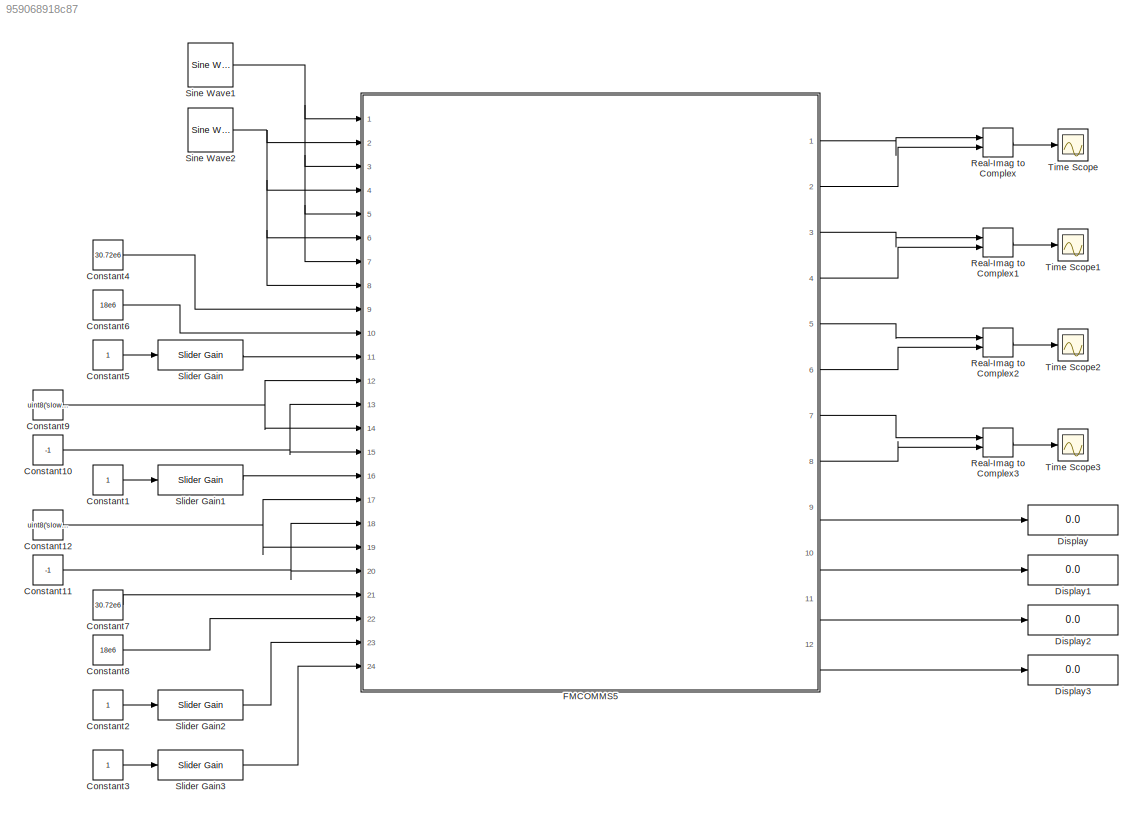
MODEL slx_959068918c87
KIND model
CONFIG AbsTol = auto
CONFIG EnableMultiTasking = on
CONFIG FixedStep = auto
CONFIG MaxStep = auto
CONFIG MinStep = auto
CONFIG RelTol = 1e-3
CONFIG SampleTimeConstraint = Unconstrained
CONFIG Solver = ode45
CONFIG SolverName = ode45
CONFIG StartTime = 0.0
CONFIG StopTime = Inf
BLOCK [Constant] Constant1
  SampleTime = -1
BLOCK [Constant] Constant10
  SampleTime = -1
  Value = -1
BLOCK [Constant] Constant11
  SampleTime = -1
  Value = -1
BLOCK [Constant] Constant12
  SampleTime = -1
  Value = uint8('slow_attack')
BLOCK [Constant] Constant2
  SampleTime = -1
BLOCK [Constant] Constant3
  SampleTime = -1
BLOCK [Constant] Constant4
  SampleTime = -1
  Value = 30.72e6
BLOCK [Constant] Constant5
  SampleTime = -1
BLOCK [Constant] Constant6
  SampleTime = -1
  Value = 18e6
BLOCK [Constant] Constant7
  SampleTime = -1
  Value = 30.72e6
BLOCK [Constant] Constant8
  SampleTime = -1
  Value = 18e6
BLOCK [Constant] Constant9
  SampleTime = -1
  Value = uint8('slow_attack')
BLOCK [Display] Display
  Decimation = 1
  Ports = [1]
BLOCK [Display] Display1
  Decimation = 1
  Ports = [1]
BLOCK [Display] Display2
  Decimation = 1
  Ports = [1]
BLOCK [Display] Display3
  Decimation = 1
  Ports = [1]
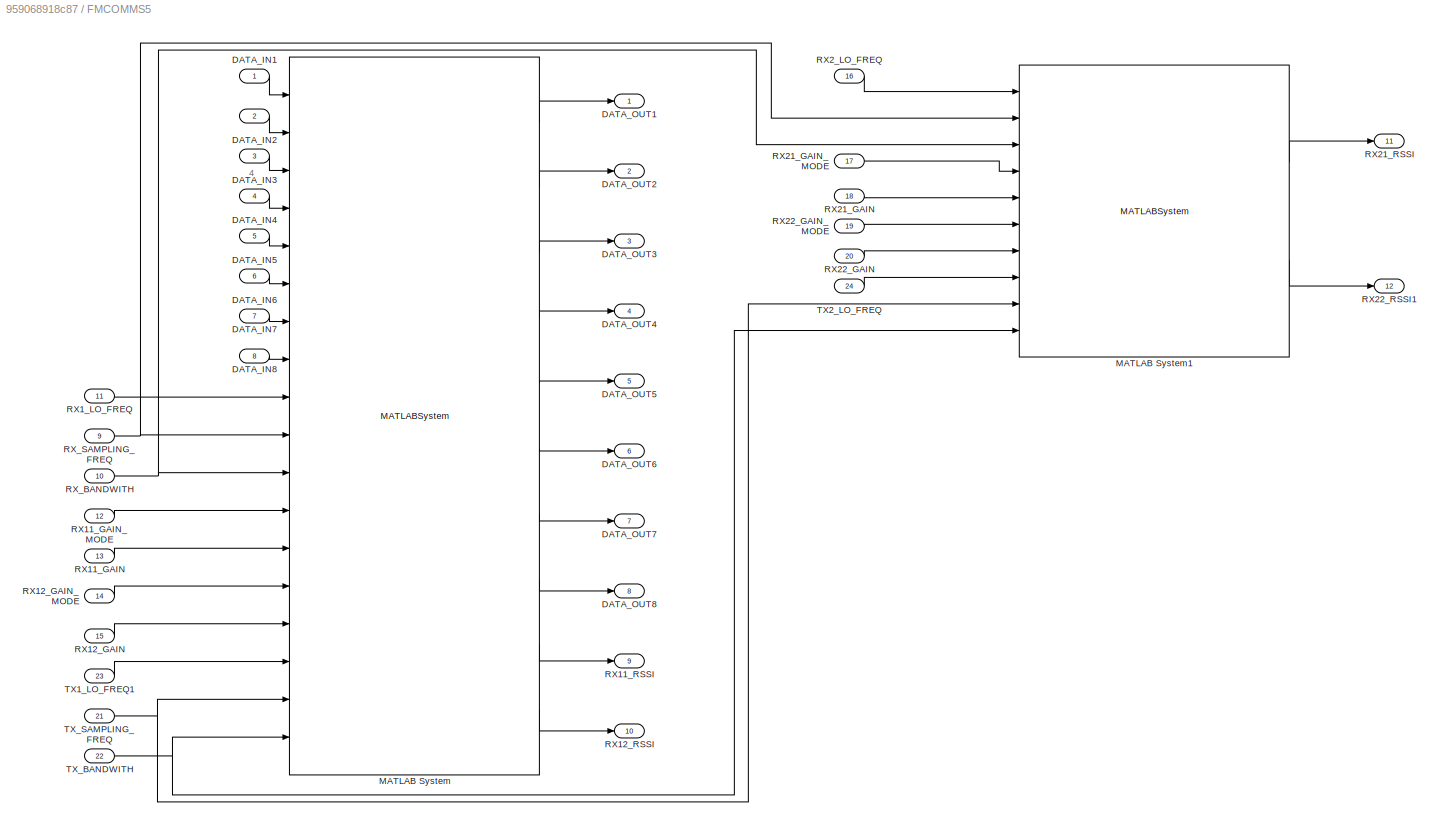
BLOCK [SubSystem] FMCOMMS5
  Ports = [24, 12]
  RequestExecContextInheritance = off
BLOCK [Inport] FMCOMMS5/DATA_IN1
  IconDisplay = Port number
BLOCK [Inport] FMCOMMS5/DATA_IN2
  IconDisplay = Port number
  Port = 2
BLOCK [Inport] FMCOMMS5/DATA_IN3
  IconDisplay = Port number
  Port = 3
BLOCK [Inport] FMCOMMS5/DATA_IN4
  IconDisplay = Port number
  Port = 4
BLOCK [Inport] FMCOMMS5/DATA_IN5
  IconDisplay = Port number
  Port = 5
BLOCK [Inport] FMCOMMS5/DATA_IN6
  IconDisplay = Port number
  Port = 6
BLOCK [Inport] FMCOMMS5/DATA_IN7
  IconDisplay = Port number
  Port = 7
BLOCK [Inport] FMCOMMS5/DATA_IN8
  IconDisplay = Port number
  Port = 8
BLOCK [Outport] FMCOMMS5/DATA_OUT1
  IconDisplay = Port number
BLOCK [Outport] FMCOMMS5/DATA_OUT2
  IconDisplay = Port number
  Port = 2
BLOCK [Outport] FMCOMMS5/DATA_OUT3
  IconDisplay = Port number
  Port = 3
BLOCK [Outport] FMCOMMS5/DATA_OUT4
  IconDisplay = Port number
  Port = 4
BLOCK [Outport] FMCOMMS5/DATA_OUT5
  IconDisplay = Port number
  Port = 5
BLOCK [Outport] FMCOMMS5/DATA_OUT6
  IconDisplay = Port number
  Port = 6
BLOCK [Outport] FMCOMMS5/DATA_OUT7
  IconDisplay = Port number
  Port = 7
BLOCK [Outport] FMCOMMS5/DATA_OUT8
  IconDisplay = Port number
  Port = 8
BLOCK [MATLABSystem] FMCOMMS5/MATLAB System
  DialogController = sysobjdialog.BlockDynDialog
  MaskDisplay = disp('ad9361-1');\nport_label('input',1,'DATA_IN1');\nport_label('input',2,'DATA_IN2');\nport_label('input',3,'DATA_IN3');\nport_label('input',4,'DATA_IN4');\nport_label('input',5,'DATA_IN5');\nport_label('input',6,'DATA_IN6');\nport_label('input',7,'DATA_IN7');\nport_label('input',8,'DATA_IN8');\nport_label('input',9,'RX_LO_FREQ');\nport_label('input',10,'RX_SAMPLING_FREQ');\nport_label('input',11,'RX_RF_BA...<+641ch>
  MaskType = iio_sys_obj
  Ports = [18, 10]
  SimulateUsing = Interpreted execution
  System = iio_sys_obj
  dev_name = ad9361-1
  in_ch_no = 8
  in_ch_size = 32768
  ip_address = 10.50.1.121
  out_ch_no = 8
  out_ch_size = 8192
BLOCK [MATLABSystem] FMCOMMS5/MATLAB System1
  DialogController = sysobjdialog.BlockDynDialog
  MaskDisplay = disp('ad9361-2');\nport_label('input',1,'RX_LO_FREQ');\nport_label('input',2,'RX_SAMPLING_FREQ');\nport_label('input',3,'RX_RF_BANDWIDTH');\nport_label('input',4,'RX1_GAIN_MODE');\nport_label('input',5,'RX1_GAIN');\nport_label('input',6,'RX2_GAIN_MODE');\nport_label('input',7,'RX2_GAIN');\nport_label('input',8,'TX_LO_FREQ');\nport_label('input',9,'TX_SAMPLING_FREQ');\nport_label('input',10,'TX_RF_BANDWIDTH'...<+72ch>
  MaskType = iio_sys_obj
  Ports = [10, 2]
  SimulateUsing = Interpreted execution
  System = iio_sys_obj
  dev_name = ad9361-2
  in_ch_no = 0
  in_ch_size = 32768
  ip_address = 10.50.1.121
  out_ch_no = 0
  out_ch_size = 8192
BLOCK [Inport] FMCOMMS5/RX11_GAIN
  IconDisplay = Port number
  Port = 13
BLOCK [Inport] FMCOMMS5/RX11_GAIN_MODE
  IconDisplay = Port number
  Port = 12
BLOCK [Outport] FMCOMMS5/RX11_RSSI
  IconDisplay = Port number
  Port = 9
BLOCK [Inport] FMCOMMS5/RX12_GAIN
  IconDisplay = Port number
  Port = 15
BLOCK [Inport] FMCOMMS5/RX12_GAIN_MODE
  IconDisplay = Port number
  Port = 14
BLOCK [Outport] FMCOMMS5/RX12_RSSI
  IconDisplay = Port number
  Port = 10
BLOCK [Inport] FMCOMMS5/RX1_LO_FREQ
  IconDisplay = Port number
  Port = 11
BLOCK [Inport] FMCOMMS5/RX21_GAIN
  IconDisplay = Port number
  Port = 18
BLOCK [Inport] FMCOMMS5/RX21_GAIN_MODE
  IconDisplay = Port number
  Port = 17
BLOCK [Outport] FMCOMMS5/RX21_RSSI
  IconDisplay = Port number
  Port = 11
BLOCK [Inport] FMCOMMS5/RX22_GAIN
  IconDisplay = Port number
  Port = 20
BLOCK [Inport] FMCOMMS5/RX22_GAIN_MODE
  IconDisplay = Port number
  Port = 19
BLOCK [Outport] FMCOMMS5/RX22_RSSI1
  IconDisplay = Port number
  Port = 12
BLOCK [Inport] FMCOMMS5/RX2_LO_FREQ
  IconDisplay = Port number
  Port = 16
BLOCK [Inport] FMCOMMS5/RX_BANDWITH
  IconDisplay = Port number
  Port = 10
BLOCK [Inport] FMCOMMS5/RX_SAMPLING_FREQ
  IconDisplay = Port number
  Port = 9
BLOCK [Inport] FMCOMMS5/TX1_LO_FREQ1
  IconDisplay = Port number
  Port = 23
BLOCK [Inport] FMCOMMS5/TX2_LO_FREQ
  IconDisplay = Port number
  Port = 24
BLOCK [Inport] FMCOMMS5/TX_BANDWITH
  IconDisplay = Port number
  Port = 22
BLOCK [Inport] FMCOMMS5/TX_SAMPLING_FREQ
  IconDisplay = Port number
  Port = 21
BLOCK [RealImagToComplex] Real-Imag to Complex
  Ports = [2, 1]
BLOCK [RealImagToComplex] Real-Imag to Complex1
  Ports = [2, 1]
BLOCK [RealImagToComplex] Real-Imag to Complex2
  Ports = [2, 1]
BLOCK [RealImagToComplex] Real-Imag to Complex3
  Ports = [2, 1]
BLOCK [Reference] Sine Wave1  REF=dspsrcs4/Sine Wave
  Ports = [0, 1]
  SourceBlock = dspsrcs4/Sine Wave
  SourceProductBaseCode = DS
  SourceProductName = DSP System Toolbox
  SourceType = Sine Wave
BLOCK [Reference] Sine Wave2  REF=dspsrcs4/Sine Wave
  Ports = [0, 1]
  SourceBlock = dspsrcs4/Sine Wave
  SourceProductBaseCode = DS
  SourceProductName = DSP System Toolbox
  SourceType = Sine Wave
BLOCK [Reference] Slider Gain  REF=simulink/Math
Operations/Slider
Gain
  Ports = [1, 1]
  SourceBlock = simulink/Math\nOperations/Slider\nGain
  SourceProductBaseCode = SL
  SourceProductName = Simulink
  SourceType = Slider Gain
BLOCK [Reference] Slider Gain1  REF=simulink/Math
Operations/Slider
Gain
  Ports = [1, 1]
  SourceBlock = simulink/Math\nOperations/Slider\nGain
  SourceProductBaseCode = SL
  SourceProductName = Simulink
  SourceType = Slider Gain
BLOCK [Reference] Slider Gain2  REF=simulink/Math
Operations/Slider
Gain
  Ports = [1, 1]
  SourceBlock = simulink/Math\nOperations/Slider\nGain
  SourceProductBaseCode = SL
  SourceProductName = Simulink
  SourceType = Slider Gain
BLOCK [Reference] Slider Gain3  REF=simulink/Math
Operations/Slider
Gain
  Ports = [1, 1]
  SourceBlock = simulink/Math\nOperations/Slider\nGain
  SourceProductBaseCode = SL
  SourceProductName = Simulink
  SourceType = Slider Gain
BLOCK [Scope] Time Scope
  DefaultConfigurationName = spbscopes.TimeScopeBlockCfg
  Floating = off
  NumInputPorts = 1
  Ports = [1]
  ScopeSpecificationString = spbscopes.TimeScopeBlockCfg('CurrentConfiguration', extmgr.ConfigurationSet(extmgr.Configuration('Core','General UI',true),extmgr.Configuration('Core','Source UI',true),extmgr.Configuration('Sources','WiredSimulink',true),extmgr.Configuration('Visuals','Time Domain',true,'DisplayPropertyDefaults',struct('MinYLimReal','-852.25','MaxYLimReal','860.25','YLabelReal','Amplitude','MinYLimMag','0','MaxYL...<+1409ch>
  UserDataPersistent = on
BLOCK [Scope] Time Scope1
  DefaultConfigurationName = spbscopes.TimeScopeBlockCfg
  Floating = off
  NumInputPorts = 1
  Ports = [1]
  ScopeSpecificationString = spbscopes.TimeScopeBlockCfg('CurrentConfiguration', extmgr.ConfigurationSet(extmgr.Configuration('Core','General UI',true),extmgr.Configuration('Core','Source UI',true),extmgr.Configuration('Sources','WiredSimulink',true,'DataLoggingVariableName','ScopeData1'),extmgr.Configuration('Visuals','Time Domain',true,'DisplayPropertyDefaults',struct('MinYLimReal','-850.875','MaxYLimReal','847.875','YLabel...<+1455ch>
  UserDataPersistent = on
BLOCK [Scope] Time Scope2
  DefaultConfigurationName = spbscopes.TimeScopeBlockCfg
  Floating = off
  NumInputPorts = 1
  Ports = [1]
  ScopeSpecificationString = spbscopes.TimeScopeBlockCfg('CurrentConfiguration', extmgr.ConfigurationSet(extmgr.Configuration('Core','General UI',true),extmgr.Configuration('Core','Source UI',true),extmgr.Configuration('Sources','WiredSimulink',true,'DataLoggingVariableName','ScopeData2'),extmgr.Configuration('Visuals','Time Domain',true,'DisplayPropertyDefaults',struct('MinYLimReal','-1273.63','MaxYLimReal','1282.63','YLabel...<+1453ch>
  UserDataPersistent = on
BLOCK [Scope] Time Scope3
  DefaultConfigurationName = spbscopes.TimeScopeBlockCfg
  Floating = off
  NumInputPorts = 1
  Ports = [1]
  ScopeSpecificationString = spbscopes.TimeScopeBlockCfg('CurrentConfiguration', extmgr.ConfigurationSet(extmgr.Configuration('Core','General UI',true),extmgr.Configuration('Core','Source UI',true),extmgr.Configuration('Sources','WiredSimulink',true,'DataLoggingVariableName','ScopeData3'),extmgr.Configuration('Visuals','Time Domain',true,'DisplayPropertyDefaults',struct('MinYLimReal','-1032.5','MaxYLimReal','1022.5','YLabelRe...<+1448ch>
  UserDataPersistent = on
ANNOTATION FMCOMMS5: 4
NET Constant10:1 -> FMCOMMS5:13, FMCOMMS5:15
NET Constant11:1 -> FMCOMMS5:18, FMCOMMS5:20
NET Constant12:1 -> FMCOMMS5:17, FMCOMMS5:19
LINE Constant1:1 -> Slider Gain1:1
LINE Constant2:1 -> Slider Gain2:1
LINE Constant3:1 -> Slider Gain3:1
LINE Constant4:1 -> FMCOMMS5:9
LINE Constant5:1 -> Slider Gain:1
LINE Constant6:1 -> FMCOMMS5:10
LINE Constant7:1 -> FMCOMMS5:21
LINE Constant8:1 -> FMCOMMS5:22
NET Constant9:1 -> FMCOMMS5:12, FMCOMMS5:14
LINE FMCOMMS5/DATA_IN1:1 -> FMCOMMS5/MATLAB System:1
LINE FMCOMMS5/DATA_IN2:1 -> FMCOMMS5/MATLAB System:2
LINE FMCOMMS5/DATA_IN3:1 -> FMCOMMS5/MATLAB System:3
LINE FMCOMMS5/DATA_IN4:1 -> FMCOMMS5/MATLAB System:4
LINE FMCOMMS5/DATA_IN5:1 -> FMCOMMS5/MATLAB System:5
LINE FMCOMMS5/DATA_IN6:1 -> FMCOMMS5/MATLAB System:6
LINE FMCOMMS5/DATA_IN7:1 -> FMCOMMS5/MATLAB System:7
LINE FMCOMMS5/DATA_IN8:1 -> FMCOMMS5/MATLAB System:8
LINE FMCOMMS5/MATLAB System1:1 -> FMCOMMS5/RX21_RSSI:1
LINE FMCOMMS5/MATLAB System1:2 -> FMCOMMS5/RX22_RSSI1:1
LINE FMCOMMS5/MATLAB System:1 -> FMCOMMS5/DATA_OUT1:1
LINE FMCOMMS5/MATLAB System:10 -> FMCOMMS5/RX12_RSSI:1
LINE FMCOMMS5/MATLAB System:2 -> FMCOMMS5/DATA_OUT2:1
LINE FMCOMMS5/MATLAB System:3 -> FMCOMMS5/DATA_OUT3:1
LINE FMCOMMS5/MATLAB System:4 -> FMCOMMS5/DATA_OUT4:1
LINE FMCOMMS5/MATLAB System:5 -> FMCOMMS5/DATA_OUT5:1
LINE FMCOMMS5/MATLAB System:6 -> FMCOMMS5/DATA_OUT6:1
LINE FMCOMMS5/MATLAB System:7 -> FMCOMMS5/DATA_OUT7:1
LINE FMCOMMS5/MATLAB System:8 -> FMCOMMS5/DATA_OUT8:1
LINE FMCOMMS5/MATLAB System:9 -> FMCOMMS5/RX11_RSSI:1
LINE FMCOMMS5/RX11_GAIN:1 -> FMCOMMS5/MATLAB System:13
LINE FMCOMMS5/RX11_GAIN_MODE:1 -> FMCOMMS5/MATLAB System:12
LINE FMCOMMS5/RX12_GAIN:1 -> FMCOMMS5/MATLAB System:15
LINE FMCOMMS5/RX12_GAIN_MODE:1 -> FMCOMMS5/MATLAB System:14
LINE FMCOMMS5/RX1_LO_FREQ:1 -> FMCOMMS5/MATLAB System:9
LINE FMCOMMS5/RX21_GAIN:1 -> FMCOMMS5/MATLAB System1:5
LINE FMCOMMS5/RX21_GAIN_MODE:1 -> FMCOMMS5/MATLAB System1:4
LINE FMCOMMS5/RX22_GAIN:1 -> FMCOMMS5/MATLAB System1:7
LINE FMCOMMS5/RX22_GAIN_MODE:1 -> FMCOMMS5/MATLAB System1:6
LINE FMCOMMS5/RX2_LO_FREQ:1 -> FMCOMMS5/MATLAB System1:1
NET FMCOMMS5/RX_BANDWITH:1 -> FMCOMMS5/MATLAB System1:3, FMCOMMS5/MATLAB System:11
NET FMCOMMS5/RX_SAMPLING_FREQ:1 -> FMCOMMS5/MATLAB System1:2, FMCOMMS5/MATLAB System:10
LINE FMCOMMS5/TX1_LO_FREQ1:1 -> FMCOMMS5/MATLAB System:16
LINE FMCOMMS5/TX2_LO_FREQ:1 -> FMCOMMS5/MATLAB System1:8
NET FMCOMMS5/TX_BANDWITH:1 -> FMCOMMS5/MATLAB System1:10, FMCOMMS5/MATLAB System:18
NET FMCOMMS5/TX_SAMPLING_FREQ:1 -> FMCOMMS5/MATLAB System1:9, FMCOMMS5/MATLAB System:17
LINE FMCOMMS5:1 -> Real-Imag to Complex:1
LINE FMCOMMS5:10 -> Display1:1
LINE FMCOMMS5:11 -> Display2:1
LINE FMCOMMS5:12 -> Display3:1
LINE FMCOMMS5:2 -> Real-Imag to Complex:2
LINE FMCOMMS5:3 -> Real-Imag to Complex1:1
LINE FMCOMMS5:4 -> Real-Imag to Complex1:2
LINE FMCOMMS5:5 -> Real-Imag to Complex2:1
LINE FMCOMMS5:6 -> Real-Imag to Complex2:2
LINE FMCOMMS5:7 -> Real-Imag to Complex3:1
LINE FMCOMMS5:8 -> Real-Imag to Complex3:2
LINE FMCOMMS5:9 -> Display:1
LINE Real-Imag to Complex1:1 -> Time Scope1:1
LINE Real-Imag to Complex2:1 -> Time Scope2:1
LINE Real-Imag to Complex3:1 -> Time Scope3:1
LINE Real-Imag to Complex:1 -> Time Scope:1
NET Sine Wave1:1 -> FMCOMMS5:1, FMCOMMS5:3, FMCOMMS5:5, FMCOMMS5:7
NET Sine Wave2:1 -> FMCOMMS5:2, FMCOMMS5:4, FMCOMMS5:6, FMCOMMS5:8
LINE Slider Gain1:1 -> FMCOMMS5:16
LINE Slider Gain2:1 -> FMCOMMS5:23
LINE Slider Gain3:1 -> FMCOMMS5:24
LINE Slider Gain:1 -> FMCOMMS5:11
note: NET lines group one-source signal fan-out (src -> all destinations, sorted); 1:1 wires keep LINE
